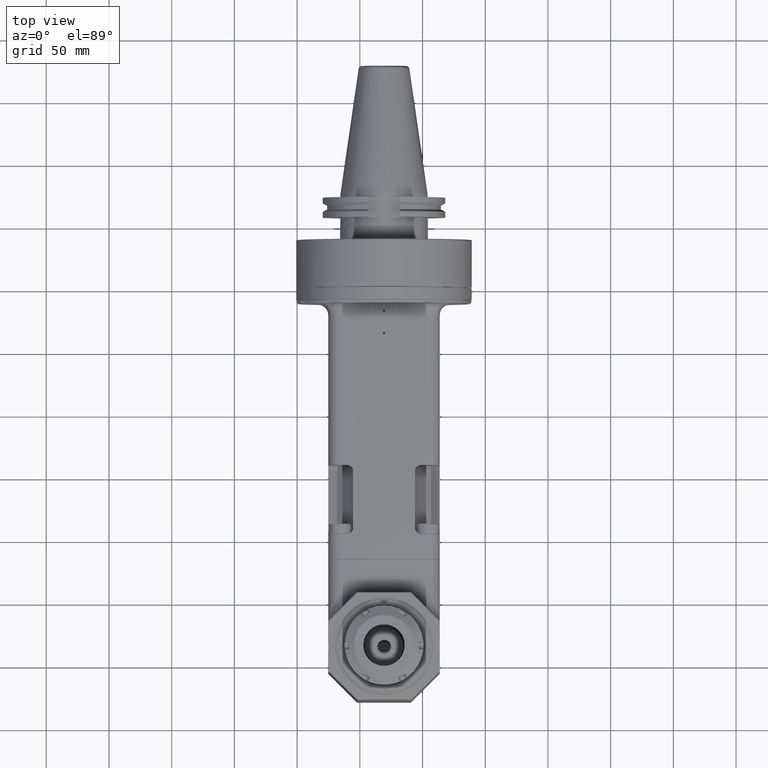
[diagram: clean part render]
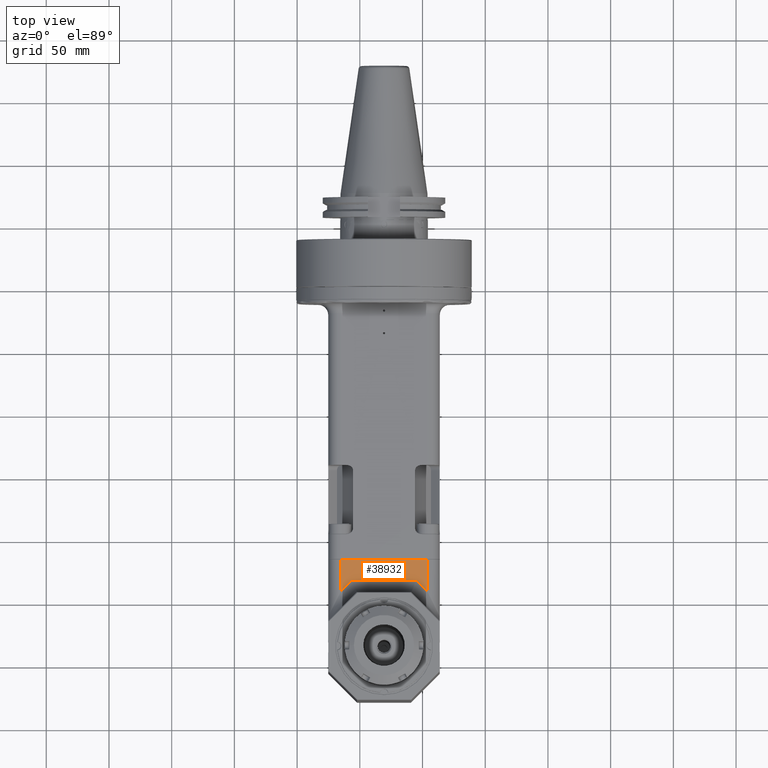
[diagram: same view with one face highlighted and labeled with its STEP entity id]
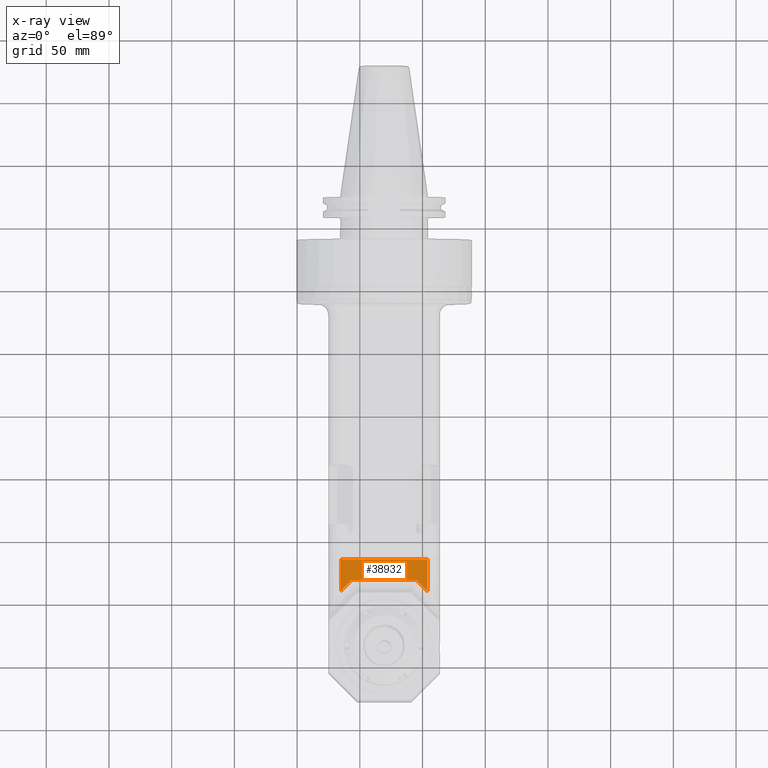
[diagram: x-ray of the same camera — body ghosted, the highlighted face saturated]
A machine part, top view. The second image highlights one B-rep face of the part: STEP entity #38932.
The next image is the same camera in x-ray: the body ghosted, the highlighted face saturated — about 0% of this face is hidden behind the body in this view.
In plain terms, the highlighted planar face has unit normal (-0, 0, -1).
Its self-contained STEP definition (entity closure, byte-faithful):
#2252=LINE('',#58562,#5284);
#2565=LINE('',#62522,#5597);
#2566=LINE('',#62525,#5598);
#2567=LINE('',#62527,#5599);
#2568=LINE('',#62529,#5600);
#2569=LINE('',#62530,#5601);
#5284=VECTOR('',#46235,68.99999989104);
#5597=VECTOR('',#47164,25.6578643789701);
#5598=VECTOR('',#47167,12.5269119345693);
#5599=VECTOR('',#47168,51.28427124746);
#5600=VECTOR('',#47169,12.5269119345702);
#5601=VECTOR('',#47170,25.6578643789701);
#9316=FACE_OUTER_BOUND('',#11790,.T.);
#11790=EDGE_LOOP('',(#27452,#27453,#27454,#27455,#27456,#27457));
#16231=VERTEX_POINT('',#58555);
#16233=VERTEX_POINT('',#58561);
#16652=VERTEX_POINT('',#62320);
#16653=VERTEX_POINT('',#62524);
#16654=VERTEX_POINT('',#62526);
#16655=VERTEX_POINT('',#62528);
#20184=EDGE_CURVE('',#16231,#16233,#2252,.T.);
#20770=EDGE_CURVE('',#16652,#16231,#2565,.T.);
#20771=EDGE_CURVE('',#16652,#16653,#2566,.T.);
#20772=EDGE_CURVE('',#16654,#16653,#2567,.T.);
#20773=EDGE_CURVE('',#16654,#16655,#2568,.T.);
#20774=EDGE_CURVE('',#16655,#16233,#2569,.T.);
#27452=ORIENTED_EDGE('',*,*,#20184,.F.);
#27453=ORIENTED_EDGE('',*,*,#20770,.F.);
#27454=ORIENTED_EDGE('',*,*,#20771,.T.);
#27455=ORIENTED_EDGE('',*,*,#20772,.F.);
#27456=ORIENTED_EDGE('',*,*,#20773,.T.);
#27457=ORIENTED_EDGE('',*,*,#20774,.T.);
#37776=PLANE('',#41773);
#38932=ADVANCED_FACE('',(#9316),#37776,.F.);
#41773=AXIS2_PLACEMENT_3D('',#62523,#47165,#47166);
#46235=DIRECTION('',(1.,0.,0.));
#47164=DIRECTION('',(2.12302640376299E-9,0.999999999999997,8.29575258058897E-8));
#47165=DIRECTION('center_axis',(0.,0.,-1.));
#47166=DIRECTION('ref_axis',(0.,1.,0.));
#47167=DIRECTION('',(0.707106781186537,0.707106781186537,1.70131067707909E-7));
#47168=DIRECTION('',(-1.,0.,0.));
#47169=DIRECTION('',(0.707106781186587,-0.707106781186487,-1.74601876345097E-7));
#47170=DIRECTION('',(-2.12308151279399E-9,0.999999999999996,8.51403039688497E-8));
#58555=CARTESIAN_POINT('',(-34.4999999472244,-217.199999998596,44.9999999982617));
#58561=CARTESIAN_POINT('',(34.4999999455218,-217.199999998311,44.9999999982276));
#58562=CARTESIAN_POINT('',(-34.49999994552,-217.1999999973,44.9999999973));
#62320=CARTESIAN_POINT('',(-34.4999999999809,-242.857864376291,44.999991475129));
#62522=CARTESIAN_POINT('',(-34.49999999999,-242.8578643763,44.99999786878));
#62523=CARTESIAN_POINT('Origin',(-53.4,-244.,45.));
#62524=CARTESIAN_POINT('',(-25.64213562373,-234.,45.));
#62525=CARTESIAN_POINT('',(-34.49999999999,-242.8578643763,44.99999786878));
#62526=CARTESIAN_POINT('',(25.64213562373,-234.,45.));
#62527=CARTESIAN_POINT('',(25.64213562373,-234.,45.));
#62528=CARTESIAN_POINT('',(34.5000000000156,-242.857864376284,44.9999978127777));
#62529=CARTESIAN_POINT('',(25.64213562373,-234.,45.));
#62530=CARTESIAN_POINT('',(34.5,-242.8578643763,44.99999781278));